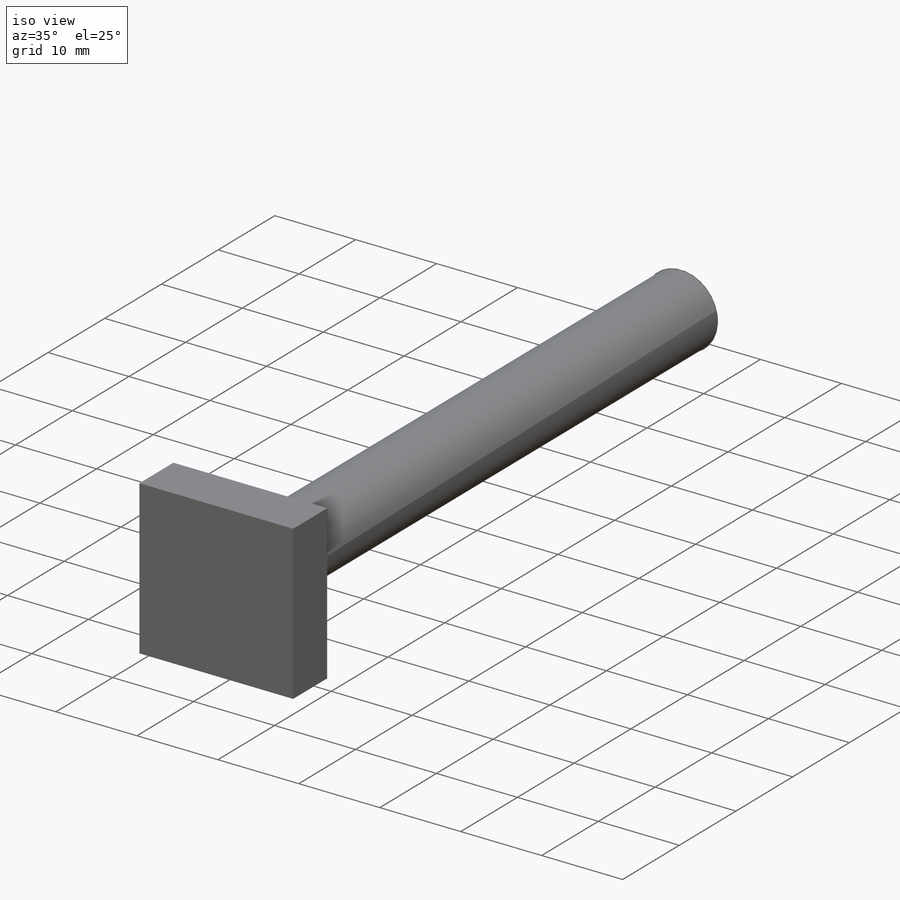
[diagram: iso view]
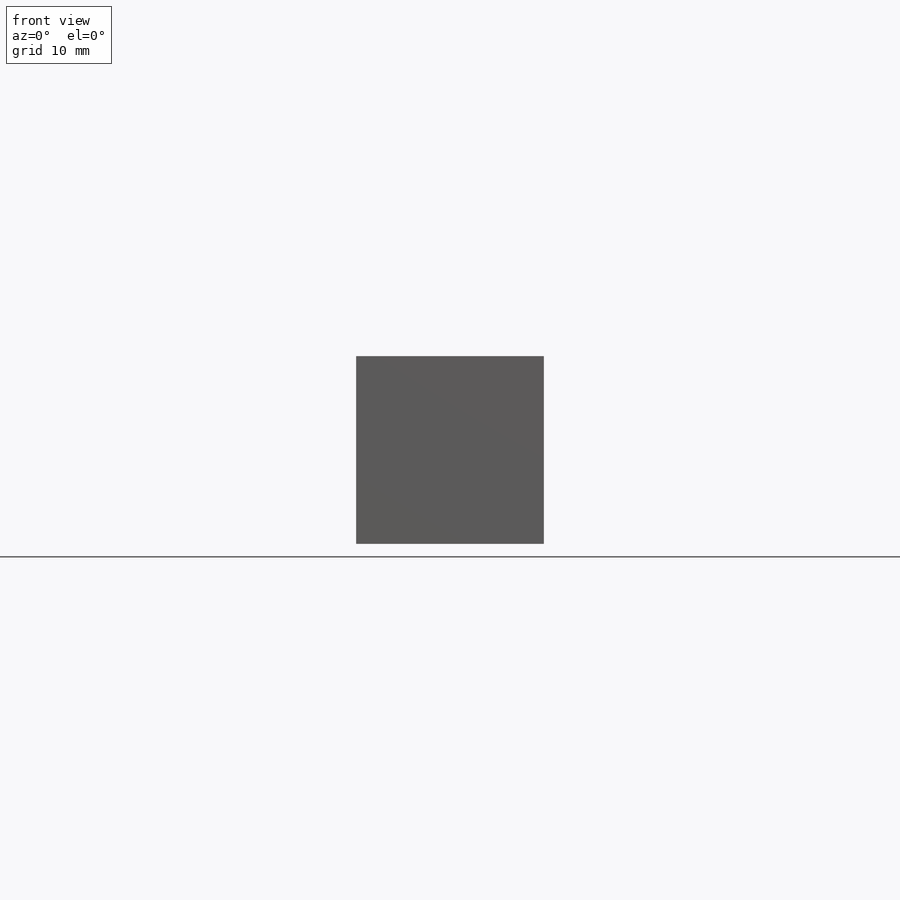
[diagram: front view]
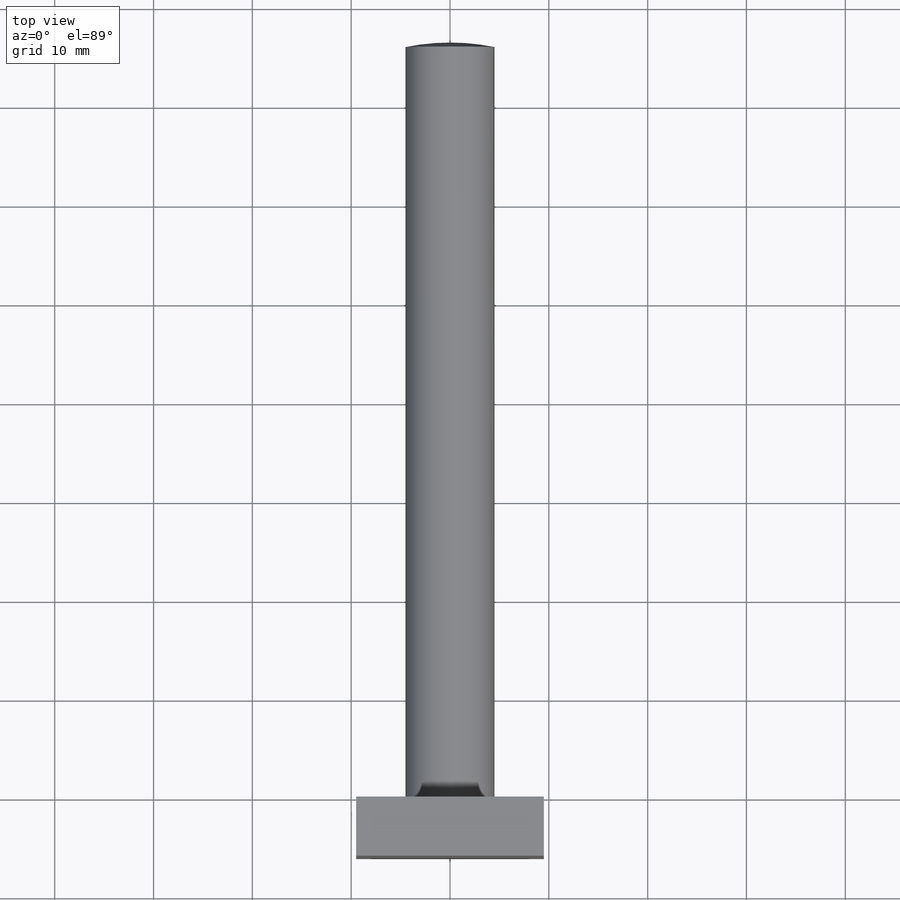
[diagram: top view]
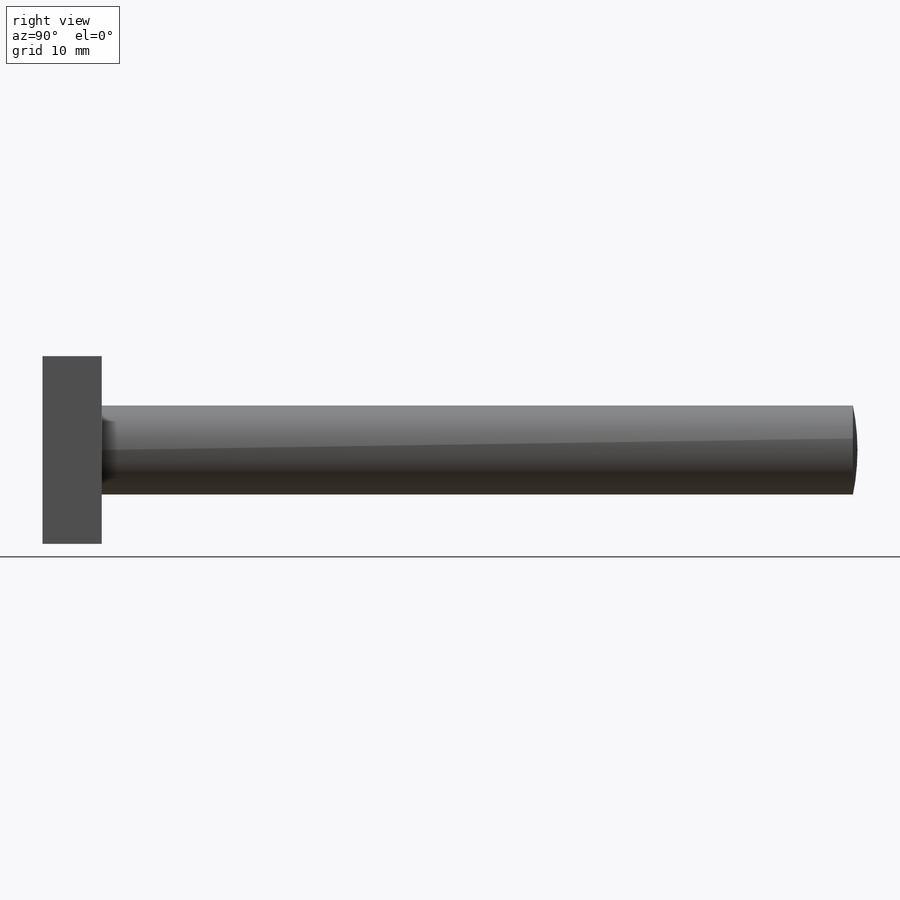
[diagram: right view]
SOLIDWORKS PART (.sldprt)
format: sldprt  version: not decoded by parser v0  size: 160,768 bytes
history: native  units: mm
features: sketch x3, extrude x2, material x1, plane x1, revolve x1 (+12 scaffold rows collapsed)
feature tree (20):
  scaffold x12  (default folders/planes/origin — collapsed)
  material  "Material <not specified>"
  sketch  "Sketch2"  dims[D1=19.0mm D2=19.0mm]
  extrude  "Boss-Extrude1"  Depth=6mm
  sketch  "Sketch4"  dims[D1=9.0mm]
  extrude  "Boss-Extrude2"  Depth=76mm
  plane  "Plane1"  Offset=0mm
  sketch  "Sketch6"  dims[D2=~44.938998mm D1=22.0mm]
  revolve  "Revolve2"  Angle=360deg
decode coverage: 6 of 6 modeling features carry decoded parameters
note: ~ marks probable driven/reference dimensions
note: suppression state not decoded; provenance and decode notes live in map.json
